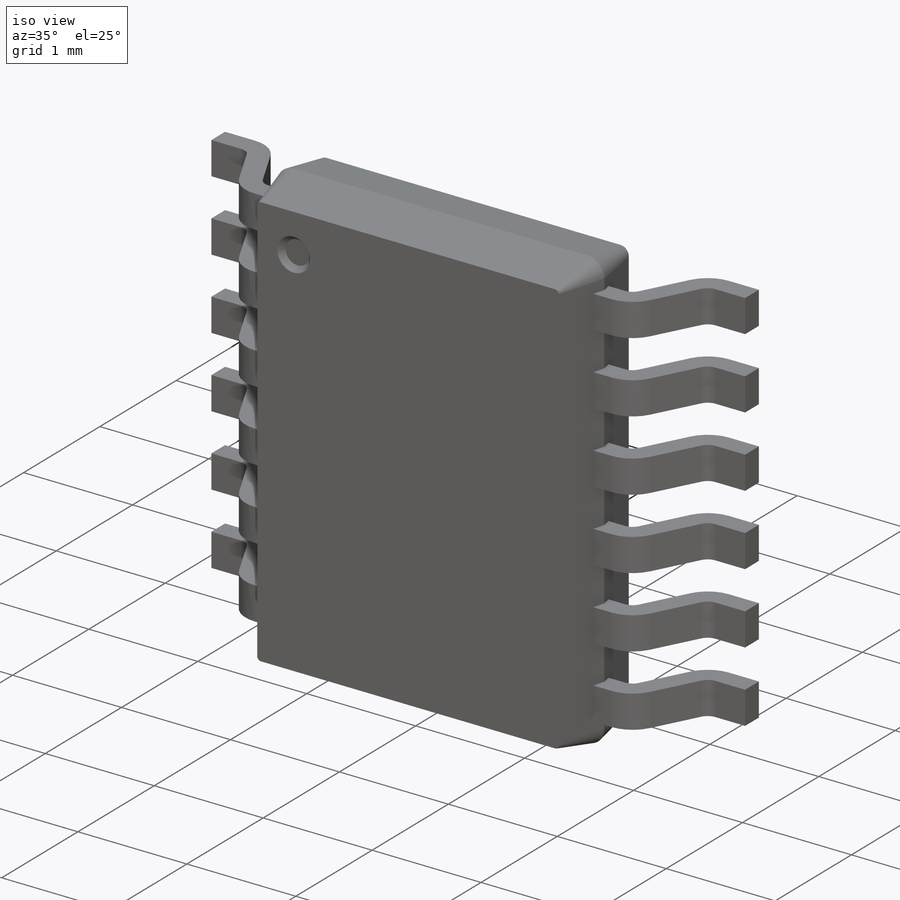
[diagram: iso view]
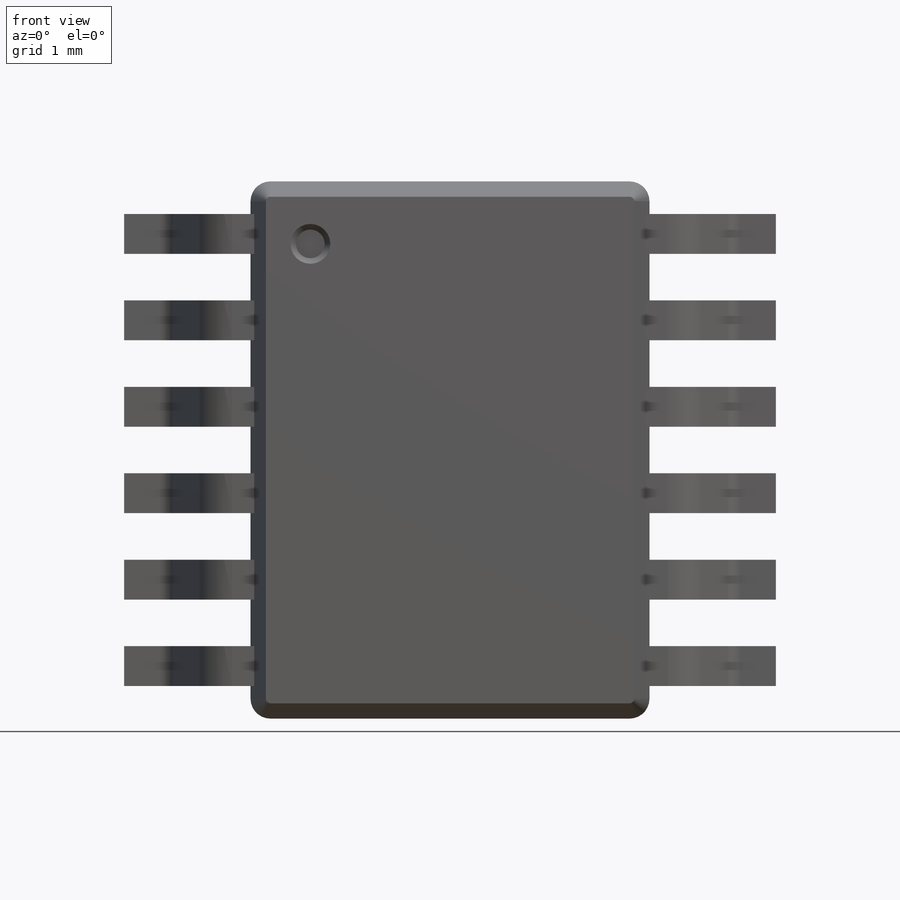
[diagram: front view]
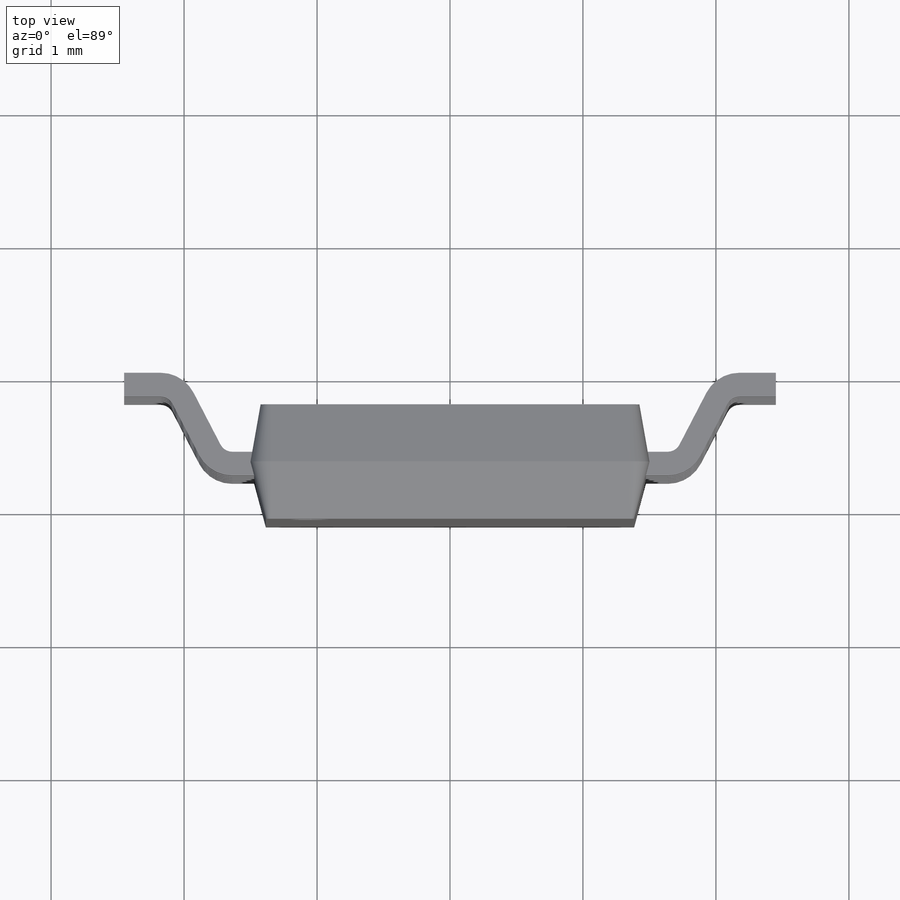
[diagram: top view]
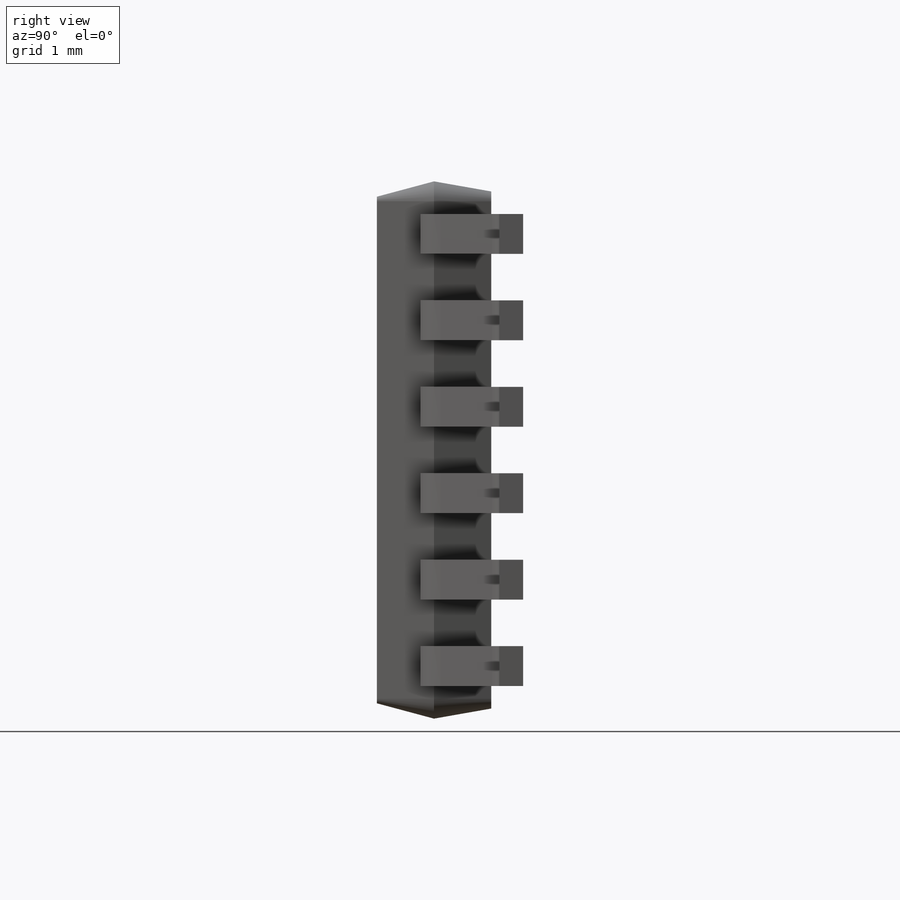
[diagram: right view]
SOLIDWORKS PART (.sldprt)
format: sldprt  version: not decoded by parser v0  size: 449,024 bytes
history: native  units: mm
features: plane x3, sketch x3, extrude x2, material x1, pattern_linear x1, cut_extrude x1 (+13 scaffold rows collapsed)
feature tree (24):
  scaffold x13  (default folders/planes/origin — collapsed)
  material  "Material <not specified>"
  plane  "Спереди"
  plane  "Сверху"
  plane  "Справа"
  sketch  "Эскиз1"  dims[c1.D1=0.15mm c1.D2=0.15mm c1.D3=0.15mm c1.D4=0.15mm c2.D1=3.0mm]
  extrude  "Вытянуть1"  Depth=0.43mm
  sketch  "Эскиз2"  dims[D1=~0.243469mm]
  sketch  "Эскиз3"  dims[c1.D1=0.1mm c1.D2=0.28mm c1.D3=0.1mm c2.D1=0.28mm c2.D2=0.1mm c3.D1=0.18mm]
  extrude  "Вытянуть2"  Depth=0.15mm
  pattern_linear  "Линейный массив1"  Count1=6 Count2=1 Spacing1=0.65mm Spacing2=10mm
  cut_extrude  "Вытянуть3"  Depth=0.05mm
decode coverage: 7 of 7 modeling features carry decoded parameters
note: ~ marks probable driven/reference dimensions
note: suppression state not decoded; provenance and decode notes live in map.json
